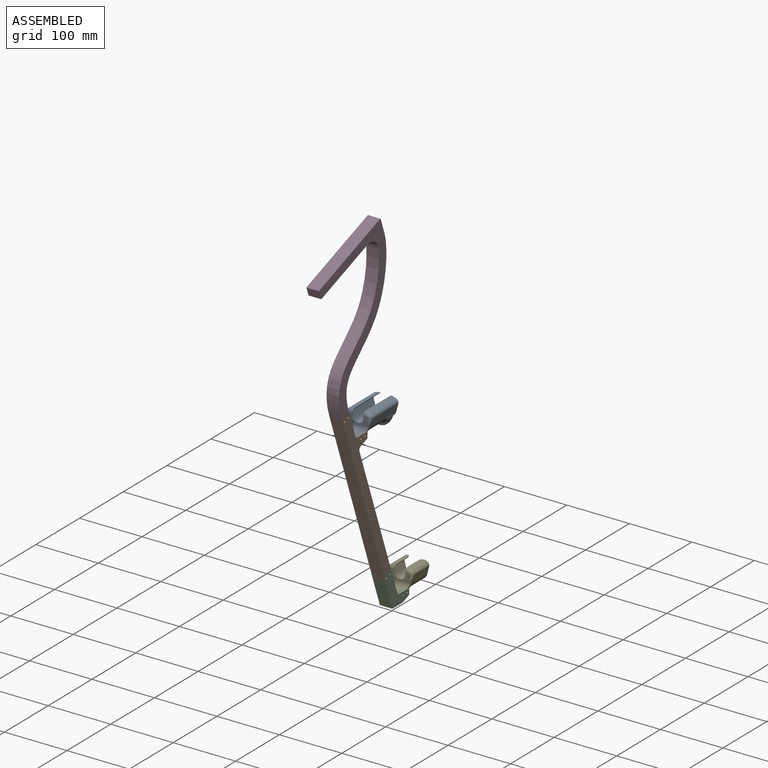
[diagram: assembled view]
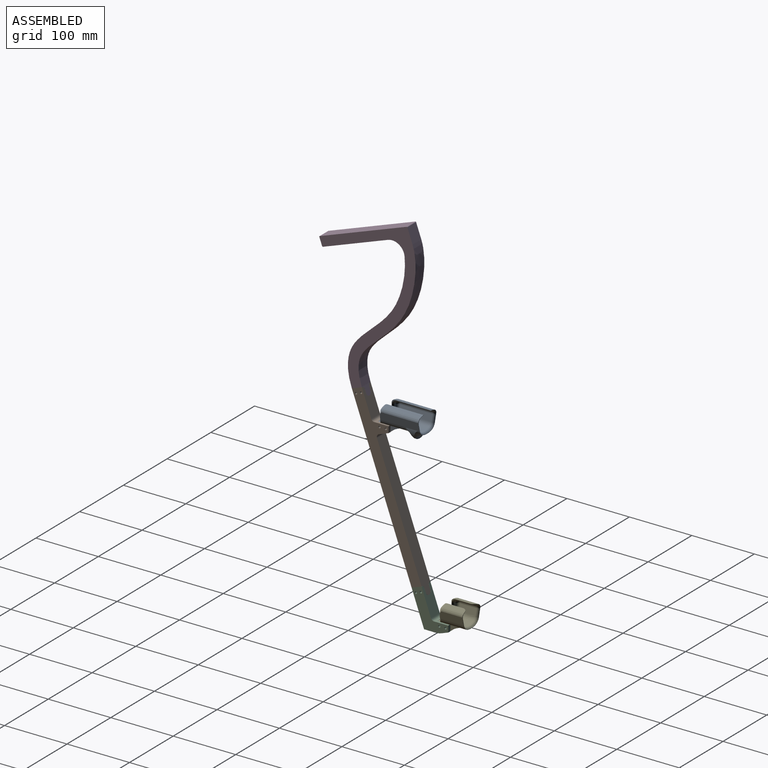
[diagram: assembled view, second angle]
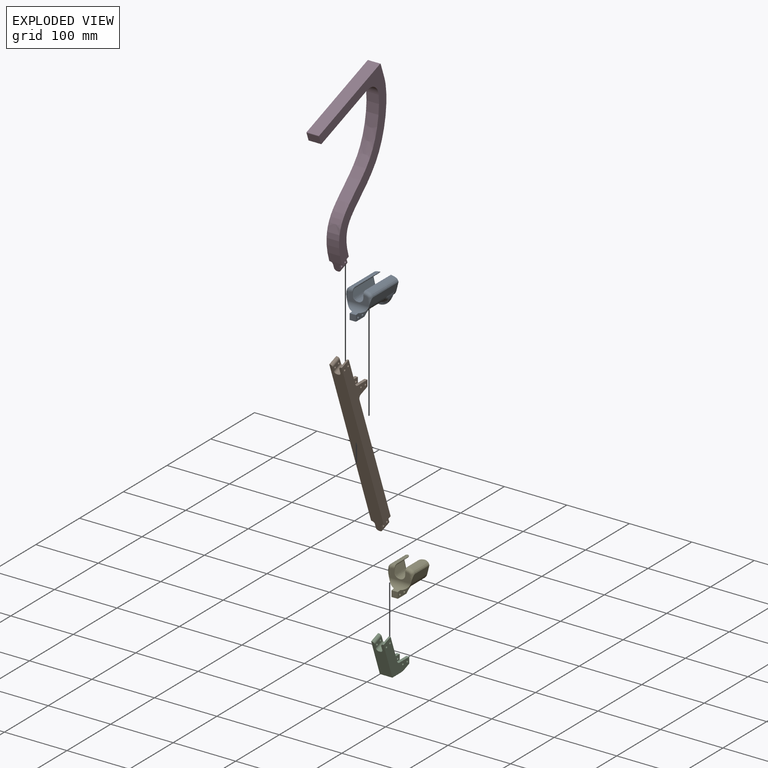
[diagram: exploded view]
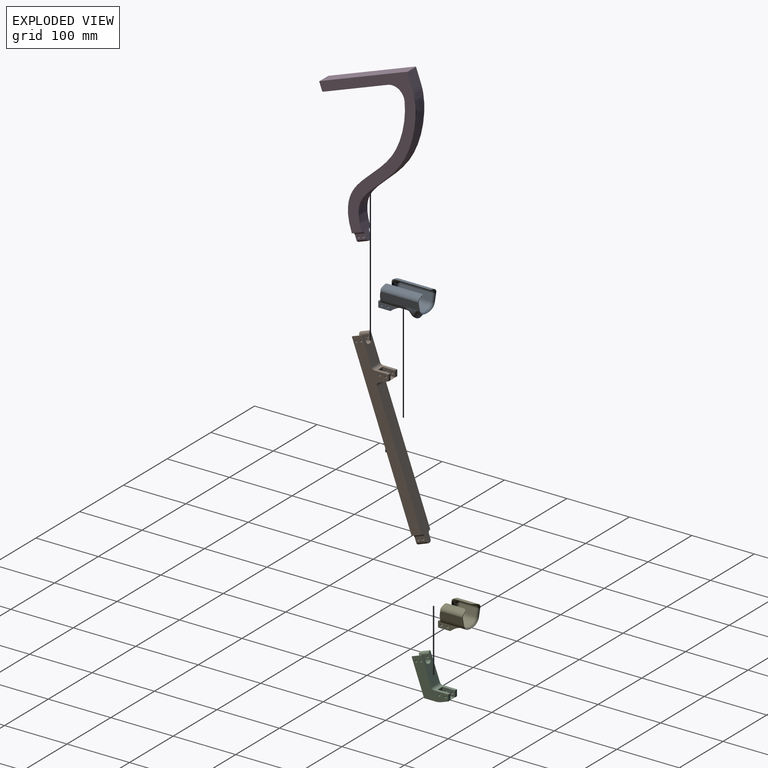
[diagram: exploded view, second angle]
ASSEMBLY  parts=5 mates=4
PART A: 111 faces, bbox 58x78.8x45 mm
  f0: plane 0.48x0.11mm, normal (0,1,0), area 0mm2, adj f10,f37,f101
  f1: plane 0.48x0.11mm, normal (0,1,0), area 0mm2, adj f40,f43,f86
  f2: extruded ~44.93x17.42mm, area 722.5mm2, adj f3,f15,f25,f69,f76,f77
  f3: extruded ~44.93x17.42mm, area 722.5mm2, adj f2,f19,f22,f70,f76,f78
  f4: plane 35.32x14.62mm, normal (0,-1,0), area 285.5mm2, adj f11,f15,f19,f46,f47,f48,f49,f50
  f5: extruded ~51.43x2.49mm, area 132.4mm2, adj f10,f45,f96,f98
  f6: extruded ~33x12.2mm, area 507.4mm2, adj f9,f11,f19,f47
  f7: plane 21.52x6.64mm, normal (0,1,0), area 32.6mm2, adj f37,f38,f39,f40,f91,f93,f95
  f8: plane 41.6x30.47mm, normal (0,1,0), area 36mm2, adj f9,f15,f19,f20,f23,f34,f47,f48
  f9: extruded ~25x12.2mm, area 384.4mm2, adj f6,f8,f19,f47
  f10: bspline ~5.62x5mm, area 13.6mm2, adj f0,f5,f44,f100,f102
  f11: bspline ~29.32x18.72mm, area 145.2mm2, adj f4,f6,f19,f47
  f12: plane 51.43x10.05mm, normal (-0.97,0,0.24), area 532.9mm2, adj f13,f24,f40,f41,f85
  f13: extruded ~30.5x15mm, area 566.7mm2, adj f12,f18,f24,f39
  f14: extruded ~51.43x2.49mm, area 132.4mm2, adj f41,f43,f79,f80,f81
  f15: plane 65.86x16.46mm, normal (0.97,0,-0.24), area 844.5mm2, adj f2,f4,f8,f16,f23,f25,f26,f30
  f16: extruded ~33x12.2mm, area 507.4mm2, adj f15,f34,f46,f48
  f17: plane 51.43x10.05mm, normal (0.97,0,0.24), area 532.9mm2, adj f18,f21,f37,f45,f92
  f18: extruded ~30.5x15mm, area 566.7mm2, adj f13,f17,f21,f38
  f19: plane 65.87x16.46mm, normal (-0.97,0,-0.24), area 844.5mm2, adj f3,f4,f6,f8,f9,f11,f20,f22
  f20: bspline ~17.42x12mm, area 43.8mm2, adj f8,f19,f23,f32,f33
  f21: bspline ~25x15mm, area 388.8mm2, adj f17,f18,f24,f90
  f22: bspline ~17.42x12mm, area 43.8mm2, adj f3,f19,f25,f28,f29
  f23: bspline ~17.42x12mm, area 43.8mm2, adj f8,f15,f20,f30,f31
  f24: bspline ~25x15mm, area 388.8mm2, adj f12,f13,f21,f88
  f25: bspline ~17.42x12mm, area 43.8mm2, adj f2,f15,f22,f26,f27
  f26: bspline ~17.17x15.8mm, area 58.8mm2, adj f15,f25,f27,f35
  f27: bspline ~24.84x12.71mm, area 182.4mm2, adj f25,f26,f28,f35
  f28: bspline ~24.84x12.71mm, area 182.4mm2, adj f22,f27,f29,f36
  f29: bspline ~17.17x15.8mm, area 58.8mm2, adj f19,f22,f28,f36
  f30: bspline ~17.17x15.8mm, area 58.8mm2, adj f15,f23,f31,f35
  f31: bspline ~20.18x12.89mm, area 182.4mm2, adj f23,f30,f32,f35
  f32: bspline ~20.18x12.89mm, area 182.4mm2, adj f20,f31,f33,f36
  f33: bspline ~19.92x16.49mm, area 58.8mm2, adj f19,f20,f32,f36
  f34: extruded ~25x12.2mm, area 384.4mm2, adj f8,f15,f16,f48
  f35: cylinder r=17.91mm len=20.03mm, axis (0,1,0), area 135mm2, adj f15,f26,f27,f30,f31,f36
  f36: cylinder r=17.91mm len=20.03mm, axis (0,1,0), area 135mm2, adj f19,f28,f29,f32,f33,f35
  f37: cylinder r=5mm len=11.27mm, axis (-0.24,0,0.97), area 79.9mm2, adj f0,f7,f17,f38,f44,f97,f99
  f38: bspline ~21.57x12.34mm, area 127mm2, adj f7,f18,f37,f39
  f39: bspline ~21.57x12.34mm, area 127mm2, adj f7,f13,f38,f40
  f40: cylinder r=5mm len=11.27mm, axis (0.24,0,0.97), area 79.9mm2, adj f1,f7,f12,f39,f42,f87,f89
  f41: cylinder r=5mm len=51.43mm, axis (0,-1,0), area 381.2mm2, adj f12,f14,f42,f83
  f42: sphere r=5mm, area 37.5mm2, adj f40,f41,f43
  f43: bspline ~5.62x5mm, area 13.6mm2, adj f1,f14,f42,f82,f84
  f44: sphere r=5mm, area 37.1mm2, adj f10,f37,f45
  f45: cylinder r=5mm len=51.43mm, axis (0,-1,0), area 381.2mm2, adj f5,f17,f44,f94
  f46: bspline ~29.32x18.72mm, area 145.2mm2, adj f4,f15,f16,f48
  f47: plane 63.27x9.92mm, normal (1,0,0), area 56.5mm2, adj f4,f6,f8,f9,f11,f50,f58,f60
  f48: plane 63.27x9.92mm, normal (-1,0,0), area 56.5mm2, adj f4,f8,f16,f34,f46,f51,f59,f61
  f49: plane 1x0.5mm, normal (0,0,1), area 0.5mm2, adj f4,f50,f51,f68
  f50: cylinder r=8mm len=8mm, axis (0,1,0), area 6.3mm2, adj f4,f47,f49,f66
  f51: cylinder r=8mm len=8mm, axis (0,-1,0), area 6.3mm2, adj f4,f48,f49,f67
  f52: bspline ~16.94x10mm, area 11.4mm2, adj f53,f54,f90,f106
  f53: bspline ~16.94x10mm, area 11.4mm2, adj f52,f55,f88,f107
  f54: plane 10.14x2.91mm, normal (0.69,0.71,0.17), area 5.7mm2, adj f52,f56,f92,f105
  f55: plane 10.14x2.91mm, normal (-0.69,0.71,0.17), area 5.7mm2, adj f53,f57,f85,f108
  f56: cone r=7mm half-angle=45deg, axis (0,1,0), area 5.4mm2, adj f54,f58,f94,f104
  f57: cone r=7mm half-angle=45deg, axis (0,1,0), area 5.4mm2, adj f55,f59,f83,f110
  f58: bspline ~7x3.19mm, area 3.5mm2, adj f47,f56,f60,f96,f103
  f59: bspline ~7x3.19mm, area 3.5mm2, adj f48,f57,f61,f79,f109
  f60: plane 55.27x0.63mm, normal (0.76,0,-0.65), area 45.6mm2, adj f47,f58,f62,f96,f98
  f61: plane 55.27x0.63mm, normal (-0.76,0,-0.65), area 45.6mm2, adj f48,f59,f63,f79,f80
  f62: bspline ~7.1x7.01mm, area 8.4mm2, adj f47,f60,f64,f100
  f63: bspline ~7.1x7.01mm, area 8.4mm2, adj f48,f61,f65,f82
  f64: plane 1.82x0.55mm, normal (0.71,0.71,0), area 1.4mm2, adj f47,f62,f66,f99,f101,f102
  f65: plane 1.82x0.55mm, normal (-0.71,0.71,0), area 1.4mm2, adj f48,f63,f67,f84,f86,f87
  f66: cone r=10mm half-angle=45deg, axis (0,1,0), area 9.8mm2, adj f50,f64,f68,f95,f97
  f67: cone r=10mm half-angle=45deg, axis (0,1,0), area 9.8mm2, adj f51,f65,f68,f89,f91
  f68: plane 1x0.54mm, normal (0,0.71,0.71), area 0.8mm2, adj f49,f66,f67,f93
  f69: plane 47.67x11.58mm, normal (1,0,0), area 273.5mm2, adj f2,f71,f72,f73,f74,f75,f76,f77
  f70: plane 47.69x11.6mm, normal (-1,0,0), area 273.5mm2, adj f3,f71,f72,f73,f74,f75,f76,f78
  f71: plane 19.71x10.01mm, normal (0,0,-1), area 197mm2, adj f69,f70,f75,f77,f78
  f72: plane 10x1mm, normal (0,0,1), area 10mm2, adj f69,f70,f75,f76
  f73: cylinder r=1.7mm len=10mm, axis (-1,0,0), area 106.8mm2, adj f69,f70
  f74: cylinder r=1.7mm len=10mm, axis (-1,0,0), area 106.8mm2, adj f69,f70
  f75: plane 10x9.7mm, normal (0,-1,0), area 97mm2, adj f69,f70,f71,f72
  f76: cylinder r=11mm len=35.16mm, axis (-1,0,0), area 395.9mm2, adj f2,f3,f4,f15,f19,f69,f70,f72
  f77: bspline ~27.22x13.76mm, area 155.5mm2, adj f2,f69,f71,f78
  f78: bspline ~27.22x13.76mm, area 155.5mm2, adj f3,f70,f71,f77
  f79: bspline ~7.51x3.54mm, area 16.9mm2, adj f14,f59,f61,f80,f81
  f80: cylinder r=5mm len=54.67mm, axis (0,-1,0), area 175mm2, adj f14,f61,f79,f82
  f81: bspline ~3.69x3.22mm, area 0mm2, adj f14,f79,f83
  f82: bspline ~8.09x6.74mm, area 30.2mm2, adj f43,f63,f80,f84
  f83: torus R=10mm, axis (0,-1,0), area 32mm2, adj f41,f57,f81,f85
  f84: bspline ~3.65x2.18mm, area 1.5mm2, adj f43,f65,f82,f86
  f85: cylinder r=5mm len=10.41mm, axis (-0.24,0,-0.97), area 40.7mm2, adj f12,f55,f83,f88
  f86: cylinder r=5mm len=3.54mm, axis (0,0,1), area 1.9mm2, adj f1,f65,f84,f87
  f87: bspline ~3.54x1.47mm, area 3.1mm2, adj f40,f65,f86,f89
  f88: bspline ~17.21x9.85mm, area 75.5mm2, adj f24,f53,f85,f90
  f89: bspline ~10.97x5.6mm, area 20.9mm2, adj f40,f67,f87,f91
  f90: bspline ~17.36x9.82mm, area 75.6mm2, adj f21,f52,f88,f92
  f91: torus R=12.07mm, axis (0,1,0), area 40.7mm2, adj f7,f67,f89,f93
  f92: cylinder r=5mm len=10.41mm, axis (-0.24,0,0.97), area 40.7mm2, adj f17,f54,f90,f94
  f93: cylinder r=5mm len=3.54mm, axis (-1,0,0), area 3.9mm2, adj f7,f68,f91,f95
  f94: torus R=10mm, axis (0,-1,0), area 32mm2, adj f45,f56,f92,f96
  f95: torus R=12.07mm, axis (0,1,0), area 40.7mm2, adj f7,f66,f93,f97
  f96: bspline ~7.56x3.54mm, area 16.9mm2, adj f5,f58,f60,f94,f98
  f97: bspline ~8.81x5.51mm, area 20.9mm2, adj f37,f66,f95,f99
  f98: cylinder r=5mm len=54.67mm, axis (0,-1,0), area 175mm2, adj f5,f60,f96,f100
  f99: bspline ~3.54x1.47mm, area 3.1mm2, adj f37,f64,f97,f101
  f100: bspline ~6.71x6.64mm, area 30.2mm2, adj f10,f62,f98,f102
  f101: cylinder r=5mm len=3.54mm, axis (0,0,1), area 1.9mm2, adj f0,f64,f99,f102
  f102: bspline ~3.65x2.18mm, area 1.5mm2, adj f10,f64,f100,f101
  f103: bspline ~9.24x2.32mm, area 2.6mm2, adj f8,f47,f58,f104
  f104: torus R=7.21mm, axis (0,-1,0), area 4.1mm2, adj f8,f56,f103,f105
  f105: cylinder r=0.5mm len=10.13mm, axis (-0.24,0,0.97), area 4.1mm2, adj f8,f54,f104,f106
  f106: bspline ~22.03x13.57mm, area 8.3mm2, adj f8,f52,f105,f107
  f107: bspline ~21.16x10mm, area 8.3mm2, adj f8,f53,f106,f108
  f108: cylinder r=0.5mm len=10.13mm, axis (-0.24,0,-0.97), area 4.1mm2, adj f8,f55,f107,f110
  f109: bspline ~7.5x1.8mm, area 2.6mm2, adj f8,f48,f59,f110
  f110: torus R=7.21mm, axis (0,-1,0), area 4.1mm2, adj f8,f57,f108,f109
PART B: 43 faces, bbox 20x116.8x282.8 mm
  f0: plane 209.84x76.38mm, normal (0,0.94,0.34), area 4316.2mm2, adj f13,f14,f24,f25,f26,f27,f28,f29
  f1: plane 10.6x10mm, normal (0,1,0), area 106mm2, adj f2,f3,f10,f39
  f2: plane 20x10mm, normal (-1,0,0), area 181.8mm2, adj f1,f7,f8,f9,f10,f39
  f3: plane 20x10mm, normal (1,0,0), area 181.8mm2, adj f1,f4,f5,f6,f10,f39
  f4: plane 10x4.7mm, normal (0,1,0), area 47mm2, adj f3,f10,f14,f40
  f5: cylinder r=1.7mm len=4.7mm, axis (1,0,0), area 50.2mm2, adj f3,f14
  f6: cylinder r=1.7mm len=4.7mm, axis (1,0,0), area 50.2mm2, adj f3,f14
  f7: plane 10x4.7mm, normal (0,1,0), area 47mm2, adj f2,f10,f13,f40
  f8: cylinder r=1.7mm len=4.7mm, axis (1,0,0), area 50.2mm2, adj f2,f13
  f9: cylinder r=1.7mm len=4.7mm, axis (1,0,0), area 50.2mm2, adj f2,f13
  f10: plane 22.8x20mm, normal (0,0,1), area 244.1mm2, adj f1,f2,f3,f4,f7,f13,f14,f42
  f11: plane 276.97x100.81mm, normal (0,-0.94,-0.34), area 5589.2mm2, adj f13,f14,f15,f16,f17,f18,f19,f20
  f12: plane 41.86x20mm, normal (0,0.94,0.34), area 735.1mm2, adj f13,f14,f15,f16,f17,f18,f19,f20
  f13: plane 268.69x111.66mm, normal (1,0,0), area 5054.4mm2, adj f0,f7,f8,f9,f10,f11,f12,f19
  f14: plane 268.69x111.66mm, normal (-1,0,0), area 5054.4mm2, adj f0,f4,f5,f6,f10,f11,f12,f15
  f15: plane 15.97x5.81mm, normal (0,-0.34,0.94), area 17mm2, adj f11,f12,f14,f23
  f16: plane 18.37x12.39mm, normal (1,0,0), area 100.8mm2, adj f11,f12,f22,f23,f37,f38
  f17: plane 15.97x5.81mm, normal (0,-0.34,0.94), area 34mm2, adj f11,f12,f21,f22
  f18: plane 18.37x12.39mm, normal (-1,0,0), area 100.8mm2, adj f11,f12,f20,f21,f35,f36
  f19: plane 15.97x5.81mm, normal (0,-0.34,0.94), area 17mm2, adj f11,f12,f13,f20
  f20: cylinder r=3.75mm len=17.26mm, axis (0,0.94,0.34), area 100.1mm2, adj f11,f12,f18,f19
  f21: cylinder r=4.25mm len=17.43mm, axis (0,-0.94,-0.34), area 113.5mm2, adj f11,f12,f17,f18
  f22: cylinder r=4.25mm len=17.43mm, axis (0,-0.94,-0.34), area 113.5mm2, adj f11,f12,f16,f17
  f23: cylinder r=3.75mm len=17.26mm, axis (0,0.94,0.34), area 100.1mm2, adj f11,f12,f15,f16
  f24: cylinder r=4mm len=17.34mm, axis (0,0.94,0.34), area 106.8mm2, adj f0,f11,f25,f27
  f25: plane 15.97x5.81mm, normal (0,0.34,-0.94), area 17mm2, adj f0,f11,f13,f24
  f26: cylinder r=4mm len=17.34mm, axis (0,-0.94,-0.34), area 106.8mm2, adj f0,f11,f27,f29
  f27: plane 18.37x12.39mm, normal (1,0,0), area 100.8mm2, adj f0,f11,f24,f26,f33,f34
  f28: cylinder r=4mm len=17.34mm, axis (0,-0.94,-0.34), area 106.8mm2, adj f0,f11,f29,f31
  f29: plane 15.97x5.81mm, normal (0,0.34,-0.94), area 34mm2, adj f0,f11,f26,f28
  f30: cylinder r=4mm len=17.34mm, axis (0,0.94,0.34), area 106.8mm2, adj f0,f11,f31,f32
  f31: plane 18.37x12.39mm, normal (-1,0,0), area 100.8mm2, adj f0,f11,f28,f30,f33,f34
  f32: plane 15.97x5.81mm, normal (0,0.34,-0.94), area 17mm2, adj f0,f11,f14,f30
  f33: cylinder r=1.7mm len=10mm, axis (1,0,0), area 106.8mm2, adj f27,f31
  f34: cylinder r=1.7mm len=10mm, axis (1,0,0), area 106.8mm2, adj f27,f31
  f35: cylinder r=1.7mm len=4.75mm, axis (1,0,0), area 50.7mm2, adj f13,f18
  f36: cylinder r=1.7mm len=4.75mm, axis (1,0,0), area 50.7mm2, adj f13,f18
  f37: cylinder r=1.7mm len=4.75mm, axis (1,0,0), area 50.7mm2, adj f14,f16
  f38: cylinder r=1.7mm len=4.75mm, axis (1,0,0), area 50.7mm2, adj f14,f16
  f39: plane 20x10.6mm, normal (0,0,1), area 212mm2, adj f1,f2,f3,f40
  f40: plane 20x15.32mm, normal (0,0.34,-0.94), area 326mm2, adj f4,f7,f13,f14,f39,f41
  f41: cylinder r=5mm len=20mm, axis (-1,0,0), area 157.1mm2, adj f0,f13,f14,f40
  f42: cylinder r=5mm len=20mm, axis (1,0,0), area 122.2mm2, adj f10,f12,f13,f14
PART C: 32 faces, bbox 20x58.7x60.7 mm
  f0: plane 54.91x20mm, normal (0,-0.94,-0.34), area 1012.9mm2, adj f12,f13,f14,f15,f16,f17,f18,f19
  f1: plane 10.6x10mm, normal (0,1,0), area 106mm2, adj f2,f3,f10,f27
  f2: plane 20x10mm, normal (-1,0,0), area 181.8mm2, adj f1,f7,f8,f9,f10,f27
  f3: plane 20x10mm, normal (1,0,0), area 181.8mm2, adj f1,f4,f5,f6,f10,f27
  f4: plane 10x4.7mm, normal (0,1,0), area 47mm2, adj f3,f10,f13,f28
  f5: cylinder r=1.7mm len=4.7mm, axis (1,0,0), area 50.2mm2, adj f3,f13
  f6: cylinder r=1.7mm len=4.7mm, axis (1,0,0), area 50.2mm2, adj f3,f13
  f7: plane 10x4.7mm, normal (0,1,0), area 47mm2, adj f2,f10,f12,f28
  f8: cylinder r=1.7mm len=4.7mm, axis (1,0,0), area 50.2mm2, adj f2,f12
  f9: cylinder r=1.7mm len=4.7mm, axis (1,0,0), area 50.2mm2, adj f2,f12
  f10: plane 22.8x20mm, normal (0,0,1), area 244.1mm2, adj f1,f2,f3,f4,f7,f12,f13,f29
  f11: plane 41.86x20mm, normal (0,0.94,0.34), area 735.1mm2, adj f12,f13,f14,f15,f16,f17,f18,f19
  f12: plane 60.72x58.71mm, normal (1,0,0), area 1333.6mm2, adj f0,f7,f8,f9,f10,f11,f18,f23
  f13: plane 60.72x58.71mm, normal (-1,0,0), area 1333.6mm2, adj f0,f4,f5,f6,f10,f11,f14,f25
  f14: plane 15.97x5.81mm, normal (0,-0.34,0.94), area 17mm2, adj f0,f11,f13,f22
  f15: plane 18.37x12.39mm, normal (1,0,0), area 100.8mm2, adj f0,f11,f21,f22,f25,f26
  f16: plane 15.97x5.81mm, normal (0,-0.34,0.94), area 34mm2, adj f0,f11,f20,f21
  f17: plane 18.37x12.39mm, normal (-1,0,0), area 100.8mm2, adj f0,f11,f19,f20,f23,f24
  f18: plane 15.97x5.81mm, normal (0,-0.34,0.94), area 17mm2, adj f0,f11,f12,f19
  f19: cylinder r=3.75mm len=17.26mm, axis (0,0.94,0.34), area 100.1mm2, adj f0,f11,f17,f18
  f20: cylinder r=4.25mm len=17.43mm, axis (0,-0.94,-0.34), area 113.5mm2, adj f0,f11,f16,f17
  f21: cylinder r=4.25mm len=17.43mm, axis (0,-0.94,-0.34), area 113.5mm2, adj f0,f11,f15,f16
  f22: cylinder r=3.75mm len=17.26mm, axis (0,0.94,0.34), area 100.1mm2, adj f0,f11,f14,f15
  f23: cylinder r=1.7mm len=4.75mm, axis (1,0,0), area 50.7mm2, adj f12,f17
  f24: cylinder r=1.7mm len=4.75mm, axis (1,0,0), area 50.7mm2, adj f12,f17
  f25: cylinder r=1.7mm len=4.75mm, axis (1,0,0), area 50.7mm2, adj f13,f15
  f26: cylinder r=1.7mm len=4.75mm, axis (1,0,0), area 50.7mm2, adj f13,f15
  f27: plane 20x10.6mm, normal (0,0,1), area 212mm2, adj f1,f2,f3,f28
  f28: plane 20x11.17mm, normal (0,0.34,-0.94), area 237.8mm2, adj f4,f7,f12,f13,f27,f31
  f29: cylinder r=5mm len=20mm, axis (1,0,0), area 122.2mm2, adj f10,f11,f12,f13
  f30: plane 20x19mm, normal (0,0,-1), area 380.1mm2, adj f0,f12,f13,f31
  f31: cylinder r=25mm len=20mm, axis (1,0,0), area 174.5mm2, adj f12,f13,f28,f30
PART D: 25 faces, bbox 20x154.3x271.4 mm
  f0: plane 20x14.63mm, normal (0,-0.94,-0.34), area 161.4mm2, adj f2,f3,f4,f5,f6,f7,f8,f9
  f1: plane 20x14.63mm, normal (0,0.94,0.34), area 161.4mm2, adj f2,f3,f4,f5,f6,f7,f8,f9
  f2: plane 257.31x154.25mm, normal (1,0,0), area 6950.7mm2, adj f0,f1,f11,f15,f16,f17,f18,f19
  f3: plane 257.31x154.25mm, normal (-1,0,0), area 6950.7mm2, adj f0,f1,f12,f15,f16,f17,f18,f19
  f4: cylinder r=4mm len=17.34mm, axis (0,0.94,0.34), area 106.8mm2, adj f0,f1,f6,f11
  f5: cylinder r=4mm len=17.34mm, axis (0,-0.94,-0.34), area 106.8mm2, adj f0,f1,f6,f8
  f6: plane 18.37x12.39mm, normal (1,0,0), area 100.8mm2, adj f0,f1,f4,f5,f13,f14
  f7: cylinder r=4mm len=17.34mm, axis (0,-0.94,-0.34), area 106.8mm2, adj f0,f1,f8,f10
  f8: plane 15.97x5.81mm, normal (0,0.34,-0.94), area 34mm2, adj f0,f1,f5,f7
  f9: cylinder r=4mm len=17.34mm, axis (0,0.94,0.34), area 106.8mm2, adj f0,f1,f10,f12
  f10: plane 18.37x12.39mm, normal (-1,0,0), area 100.8mm2, adj f0,f1,f7,f9,f13,f14
  f11: plane 15.97x5.81mm, normal (0,0.34,-0.94), area 17mm2, adj f0,f1,f2,f4
  f12: plane 15.97x5.81mm, normal (0,0.34,-0.94), area 17mm2, adj f0,f1,f3,f9
  f13: cylinder r=1.7mm len=10mm, axis (1,0,0), area 106.8mm2, adj f6,f10
  f14: cylinder r=1.7mm len=10mm, axis (1,0,0), area 106.8mm2, adj f6,f10
  f15: extruded ~213.36x91.33mm, area 4893.1mm2, adj f0,f2,f3,f21
  f16: extruded ~227.75x91.31mm, area 5189.8mm2, adj f1,f2,f3,f17
  f17: plane 22.55x20mm, normal (0,0.94,0.34), area 480mm2, adj f2,f3,f16,f22
  f18: plane 139.07x50.62mm, normal (0,-0.34,0.94), area 2960mm2, adj f2,f3,f22,f23
  f19: plane 20x12.22mm, normal (0,-0.94,-0.34), area 260mm2, adj f2,f3,f23,f24
  f20: plane 103.95x37.83mm, normal (0,0.34,-0.94), area 2212.4mm2, adj f2,f3,f21,f24
  f21: cylinder r=20mm len=26.71mm, axis (-1,0,0), area 721.4mm2, adj f2,f3,f15,f20
  f22: cylinder r=1mm len=20mm, axis (-1,0,0), area 31.4mm2, adj f2,f3,f17,f18
  f23: cylinder r=1mm len=20mm, axis (-1,0,0), area 31.4mm2, adj f2,f3,f18,f19
  f24: cylinder r=1mm len=20mm, axis (-1,0,0), area 31.4mm2, adj f2,f3,f19,f20
PART E: 115 faces, bbox 51.3x53.8x44.7 mm
  f0: extruded ~44.63x17.42mm, area 727.8mm2, adj f1,f14,f88,f105,f112,f113
  f1: extruded ~44.63x17.42mm, area 727.8mm2, adj f0,f18,f89,f106,f112,f114
  f2: plane 0.48x0.11mm, normal (0,1,0), area 0mm2, adj f9,f19,f61
  f3: plane 0.48x0.11mm, normal (0,1,0), area 0mm2, adj f22,f25,f77
  f4: plane 41.01x28.51mm, normal (0,1,0), area 14.7mm2, adj f34,f35,f55,f56,f57,f58,f59,f60
  f5: plane 35.32x15.1mm, normal (0,-1,0), area 287mm2, adj f10,f14,f18,f28,f100,f101,f102,f103
  f6: extruded ~26.37x2.49mm, area 63.1mm2, adj f9,f27,f66,f68
  f7: extruded ~32.8x11.98mm, area 466.3mm2, adj f10,f18,f93,f95,f97
  f8: plane 21.11x6.32mm, normal (0,1,0), area 29.6mm2, adj f19,f20,f21,f22,f67,f69,f71
  f9: bspline ~5.62x5mm, area 13.6mm2, adj f2,f6,f26,f62,f64
  f10: bspline ~29.32x18.72mm, area 143.7mm2, adj f5,f7,f18,f99
  f11: plane 26.43x10.05mm, normal (-0.97,0,0.24), area 273.8mm2, adj f12,f22,f23,f82
  f12: extruded ~26.43x15mm, area 498mm2, adj f11,f17,f21,f80
  f13: extruded ~26.37x2.49mm, area 63.1mm2, adj f23,f25,f83,f85
  f14: plane 40.65x15.86mm, normal (0.97,0,-0.24), area 493.7mm2, adj f0,f5,f15,f28,f90,f112
  f15: extruded ~32.8x11.98mm, area 466.3mm2, adj f14,f28,f92,f94,f96
  f16: plane 26.43x10.05mm, normal (0.97,0,0.24), area 273.8mm2, adj f17,f19,f27,f76
  f17: extruded ~26.43x15mm, area 498mm2, adj f12,f16,f20,f78
  f18: plane 40.65x15.86mm, normal (-0.97,0,-0.24), area 493.7mm2, adj f1,f5,f7,f10,f91,f112
  f19: cylinder r=5mm len=11.27mm, axis (-0.24,0,0.97), area 79.4mm2, adj f2,f8,f16,f20,f26,f63,f65
  f20: bspline ~21.43x10.56mm, area 129.1mm2, adj f8,f17,f19,f21
  f21: bspline ~21.43x10.56mm, area 129.1mm2, adj f8,f12,f20,f22
  f22: cylinder r=5mm len=11.27mm, axis (0.24,0,0.97), area 79.4mm2, adj f3,f8,f11,f21,f24,f73,f75
  f23: cylinder r=5mm len=26.43mm, axis (0,-1,0), area 195.8mm2, adj f11,f13,f24,f84,f86,f87
  f24: sphere r=5mm, area 23.3mm2, adj f22,f23,f25
  f25: bspline ~5.62x5mm, area 13.6mm2, adj f3,f13,f24,f79,f81
  f26: sphere r=5mm, area 37.1mm2, adj f9,f19,f27
  f27: cylinder r=5mm len=26.43mm, axis (0,-1,0), area 195.9mm2, adj f6,f16,f26,f70,f72,f74
  f28: bspline ~29.32x18.72mm, area 143.7mm2, adj f5,f14,f15,f98
  f29: plane 30.1x9.95mm, normal (1,0,0), area 24.2mm2, adj f32,f34,f48,f50,f52,f97,f99,f101
  f30: plane 30.1x9.95mm, normal (-1,0,0), area 24.2mm2, adj f33,f35,f45,f47,f49,f96,f98,f100
  f31: plane 1x0.3mm, normal (0,0,1), area 0.3mm2, adj f32,f33,f53,f104
  f32: cylinder r=8mm len=8mm, axis (0,1,0), area 3.8mm2, adj f29,f31,f54,f103
  f33: cylinder r=8mm len=8mm, axis (0,-1,0), area 3.8mm2, adj f30,f31,f51,f102
  f34: cylinder r=7.73mm len=8.25mm, axis (0,0,-1), area 6.2mm2, adj f4,f29,f44,f46,f60,f95
  f35: cylinder r=7.73mm len=8.25mm, axis (0,0,1), area 6.2mm2, adj f4,f30,f41,f43,f55,f94
  f36: bspline ~16.94x10.5mm, area 11.6mm2, adj f37,f38,f57,f80
  f37: plane 10.14x2.91mm, normal (-0.69,0.71,0.17), area 5.7mm2, adj f36,f39,f56,f82
  f38: bspline ~16.94x10.5mm, area 11.6mm2, adj f36,f40,f58,f78
  f39: cone r=7mm half-angle=45deg, axis (0,1,0), area 4.7mm2, adj f37,f41,f55,f84
  f40: plane 10.14x2.91mm, normal (0.69,0.71,0.17), area 5.7mm2, adj f38,f42,f59,f76
  f41: bspline ~2.47x2.44mm, area 1.3mm2, adj f35,f39,f43,f55,f86
  f42: cone r=7mm half-angle=45deg, axis (0,1,0), area 4.7mm2, adj f40,f44,f60,f74
  f43: bspline ~7.54x6.06mm, area 8.1mm2, adj f35,f41,f45,f85,f87
  f44: bspline ~2.47x2.44mm, area 1.3mm2, adj f34,f42,f46,f60,f72
  f45: plane 22.77x0.63mm, normal (-0.76,0,-0.65), area 18.9mm2, adj f30,f43,f47,f83
  f46: bspline ~7.54x6.06mm, area 8.1mm2, adj f34,f44,f48,f68,f70
  f47: bspline ~7.1x7.01mm, area 8.4mm2, adj f30,f45,f49,f81
  f48: plane 22.77x0.63mm, normal (0.76,0,-0.65), area 18.9mm2, adj f29,f46,f50,f66
  f49: plane 2.32x0.55mm, normal (-0.71,0.71,0), area 1.8mm2, adj f30,f47,f51,f75,f77,f79
  f50: bspline ~7.1x7.01mm, area 8.4mm2, adj f29,f48,f52,f64
  f51: cone r=10mm half-angle=45deg, axis (0,1,0), area 9.9mm2, adj f33,f49,f53,f71,f73
  f52: plane 2.32x0.55mm, normal (0.71,0.71,0), area 1.8mm2, adj f29,f50,f54,f61,f62,f63
  f53: plane 1x0.54mm, normal (0,0.71,0.71), area 0.8mm2, adj f31,f51,f54,f69
  f54: cone r=10mm half-angle=45deg, axis (0,1,0), area 9.9mm2, adj f32,f52,f53,f65,f67
  f55: torus R=7.21mm, axis (0,1,0), area 3.4mm2, adj f4,f35,f39,f41,f56
  f56: cylinder r=0.5mm len=10.13mm, axis (-0.24,0,-0.97), area 4.1mm2, adj f4,f37,f55,f57
  f57: bspline ~22.03x14.07mm, area 8.4mm2, adj f4,f36,f56,f58
  f58: bspline ~22.02x14.06mm, area 8.4mm2, adj f4,f38,f57,f59
  f59: cylinder r=0.5mm len=10.13mm, axis (-0.24,0,0.97), area 4.1mm2, adj f4,f40,f58,f60
  f60: torus R=7.21mm, axis (0,1,0), area 3.4mm2, adj f4,f34,f42,f44,f59
  f61: cylinder r=5mm len=3.54mm, axis (0,0,1), area 1.9mm2, adj f2,f52,f62,f63
  f62: bspline ~3.65x2.18mm, area 1.5mm2, adj f9,f52,f61,f64
  f63: bspline ~3.54x1.47mm, area 5mm2, adj f19,f52,f61,f65
  f64: bspline ~6.71x6.64mm, area 30.2mm2, adj f9,f50,f62,f66
  f65: bspline ~11.05x6.51mm, area 21.8mm2, adj f19,f54,f63,f67
  f66: cylinder r=5mm len=22.77mm, axis (0,-1,0), area 75.1mm2, adj f6,f48,f64,f68
  f67: torus R=12.07mm, axis (0,1,0), area 39.5mm2, adj f8,f54,f65,f69
  f68: bspline ~9.23x5.37mm, area 24.3mm2, adj f6,f46,f66,f70
  f69: cylinder r=5mm len=3.54mm, axis (-1,0,0), area 3.9mm2, adj f8,f53,f67,f71
  f70: bspline ~3.59x1.73mm, area 0.8mm2, adj f27,f46,f68,f72
  f71: torus R=12.07mm, axis (0,1,0), area 39.5mm2, adj f8,f51,f69,f73
  f72: bspline ~3.59x2.39mm, area 4.7mm2, adj f27,f44,f70,f74
  f73: bspline ~12.69x6.55mm, area 21.8mm2, adj f22,f51,f71,f75
  f74: torus R=10mm, axis (0,-1,0), area 27.8mm2, adj f27,f42,f72,f76
  f75: bspline ~3.54x1.47mm, area 5mm2, adj f22,f49,f73,f77
  f76: cylinder r=5mm len=10.41mm, axis (0.24,0,-0.97), area 40.7mm2, adj f16,f40,f74,f78
  f77: cylinder r=5mm len=3.54mm, axis (0,0,1), area 1.9mm2, adj f3,f49,f75,f79
  f78: bspline ~17.54x10.59mm, area 76.6mm2, adj f17,f38,f76,f80
  f79: bspline ~3.65x2.18mm, area 1.5mm2, adj f25,f49,f77,f81
  f80: bspline ~17.24x10.38mm, area 76.6mm2, adj f12,f36,f78,f82
  f81: bspline ~8.09x6.74mm, area 30.2mm2, adj f25,f47,f79,f83
  f82: cylinder r=5mm len=10.41mm, axis (0.24,0,0.97), area 40.7mm2, adj f11,f37,f80,f84
  f83: cylinder r=5mm len=22.77mm, axis (0,-1,0), area 75.1mm2, adj f13,f45,f81,f85
  f84: torus R=10mm, axis (0,-1,0), area 27.9mm2, adj f23,f39,f82,f86
  f85: bspline ~9.27x5.38mm, area 24.3mm2, adj f13,f43,f83,f87
  f86: bspline ~3.59x2.42mm, area 4.7mm2, adj f23,f41,f84,f87
  f87: bspline ~3.59x1.73mm, area 0.8mm2, adj f23,f43,f85,f86
  f88: bspline ~23.27x12.97mm, area 6.9mm2, adj f0,f4,f89,f90
  f89: bspline ~23.27x12.97mm, area 6.9mm2, adj f1,f4,f88,f91
  f90: cylinder r=0.2mm len=13.06mm, axis (0.24,0,0.97), area 4.2mm2, adj f4,f14,f88,f92
  f91: cylinder r=0.2mm len=13.06mm, axis (-0.24,0,0.97), area 4.2mm2, adj f4,f18,f89,f93
  f92: bspline ~8.09x6.06mm, area 2.3mm2, adj f4,f15,f90,f94
  f93: bspline ~8.09x6.06mm, area 2.3mm2, adj f4,f7,f91,f95
  f94: bspline ~9.45x9.26mm, area 4.1mm2, adj f15,f35,f92,f96
  f95: bspline ~9.45x9.26mm, area 4.1mm2, adj f7,f34,f93,f97
  f96: cylinder r=0.2mm len=25.27mm, axis (0,-1,0), area 8.5mm2, adj f15,f30,f94,f98
  f97: cylinder r=0.2mm len=25.27mm, axis (0,-1,0), area 8.5mm2, adj f7,f29,f95,f99
  f98: bspline ~6.18x6.12mm, area 2.5mm2, adj f28,f30,f96,f100
  f99: bspline ~6.18x6.12mm, area 2.5mm2, adj f10,f29,f97,f101
  f100: cylinder r=0.2mm len=5.1mm, axis (0,0,-1), area 1.6mm2, adj f5,f30,f98,f102
  f101: cylinder r=0.2mm len=5.1mm, axis (0,0,1), area 1.6mm2, adj f5,f29,f99,f103
  f102: torus R=8.2mm, axis (0,-1,0), area 4mm2, adj f5,f33,f100,f104
  f103: torus R=8.2mm, axis (0,-1,0), area 4mm2, adj f5,f32,f101,f104
  f104: cylinder r=0.2mm len=1mm, axis (-1,0,0), area 0.3mm2, adj f5,f31,f102,f103
  f105: plane 48.01x11.84mm, normal (1,0,0), area 274.6mm2, adj f0,f107,f108,f109,f110,f111,f112,f113
  f106: plane 48.02x11.85mm, normal (-1,0,0), area 274.6mm2, adj f1,f107,f108,f109,f110,f111,f112,f114
  f107: plane 19.71x10.01mm, normal (0,0,-1), area 197mm2, adj f105,f106,f111,f113,f114
  f108: plane 10x1mm, normal (0,0,1), area 10mm2, adj f105,f106,f111,f112
  f109: cylinder r=1.7mm len=10mm, axis (-1,0,0), area 106.8mm2, adj f105,f106
  f110: cylinder r=1.7mm len=10mm, axis (-1,0,0), area 106.8mm2, adj f105,f106
  f111: plane 10x9.7mm, normal (0,-1,0), area 97mm2, adj f105,f106,f107,f108
  f112: cylinder r=11mm len=34.9mm, axis (-1,0,0), area 387.9mm2, adj f0,f1,f5,f14,f18,f105,f106,f108
  f113: bspline ~27.27x13.76mm, area 157.7mm2, adj f0,f105,f107,f114
  f114: bspline ~27.27x13.76mm, area 157.7mm2, adj f1,f106,f107,f113
PLACE A t=(21.7,-13.11,13.42)mm
PLACE B t=(21.4,-13.11,13.42)mm
PLACE C t=(21.4,82.57,-249.46)mm
PLACE D t=(21.4,-12.92,12.92)mm
PLACE E t=(21.7,82.57,-249.46)mm
MATE fastened A.f74 <-> B.f6  axis (1,0,0) through (26.7,-57.91,-9.58)mm
MATE fastened D.f2 <-> B.f13  axis (1,0,0) through (31.4,-86.14,40.57)mm
MATE fastened B.f13 <-> C.f12  axis (1,0,0) through (31.4,9.54,-222.31)mm
MATE fastened E.f110 <-> C.f6  axis (1,0,0) through (26.7,37.77,-272.46)mm
